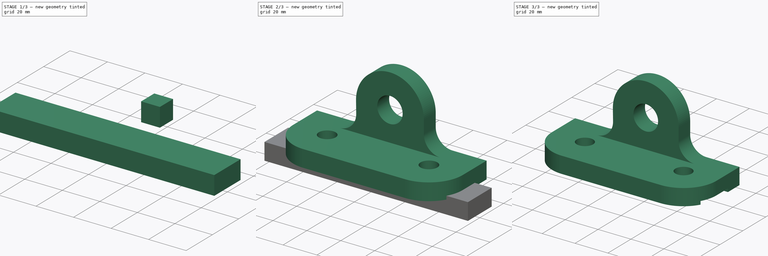
[diagram: build sequence overview — one tinted view per stage of 3, left to right]
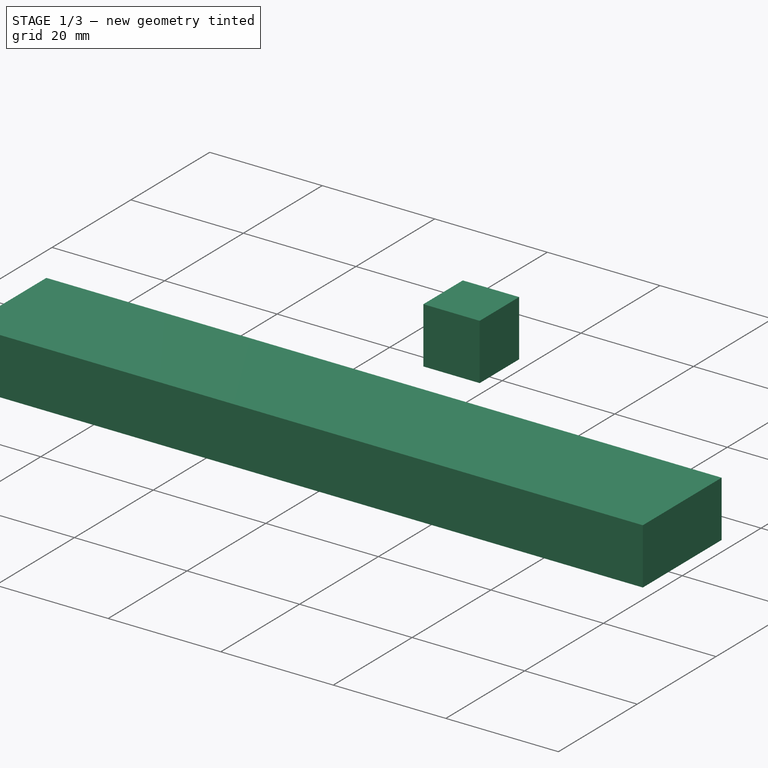
[diagram: stage 1 of 3 — iso view after this stage's code; geometry added in this stage tinted green]
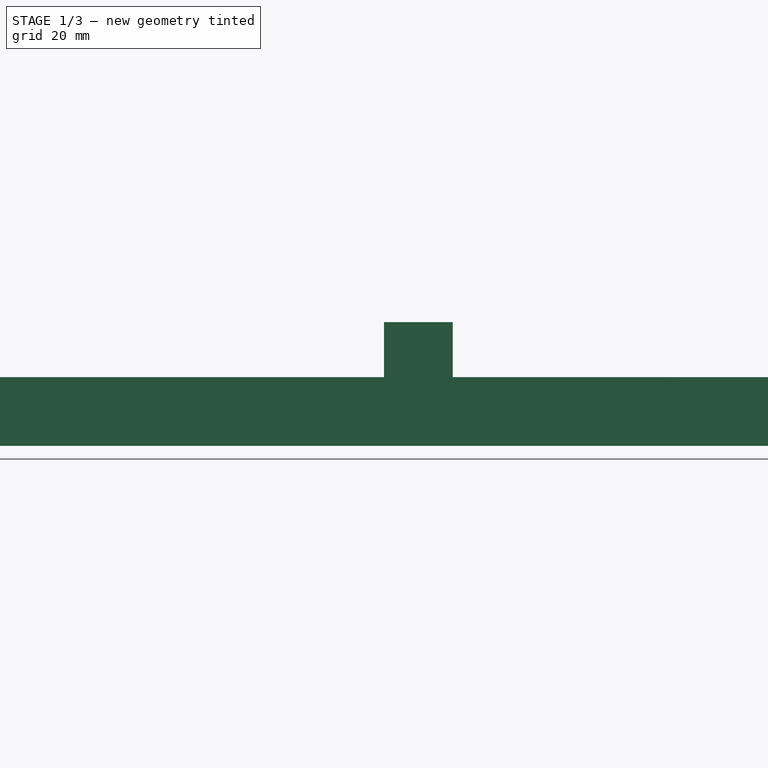
[diagram: stage 1 of 3 — front view after this stage's code; geometry added in this stage tinted green]
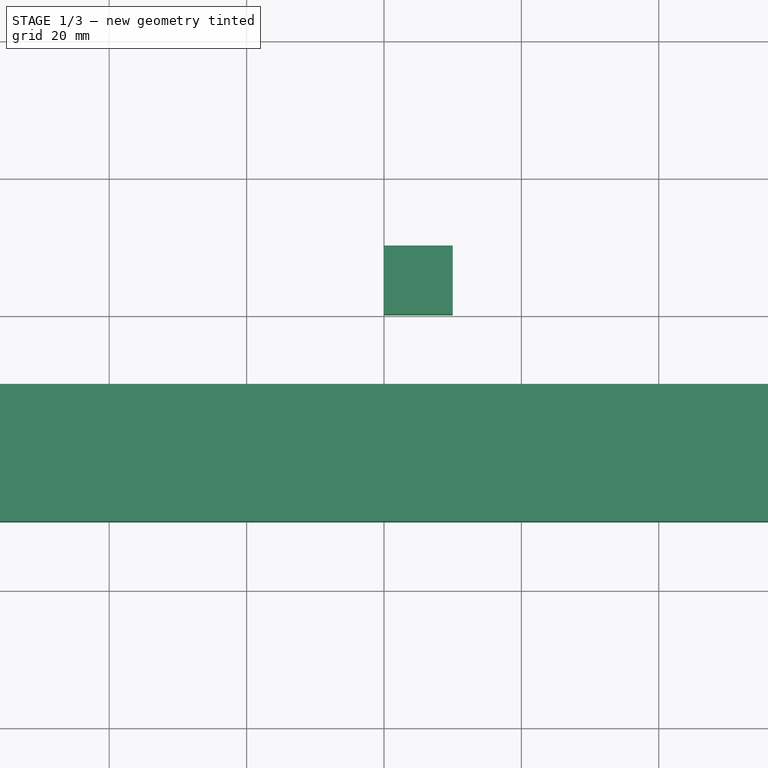
[diagram: stage 1 of 3 — top view after this stage's code; geometry added in this stage tinted green]
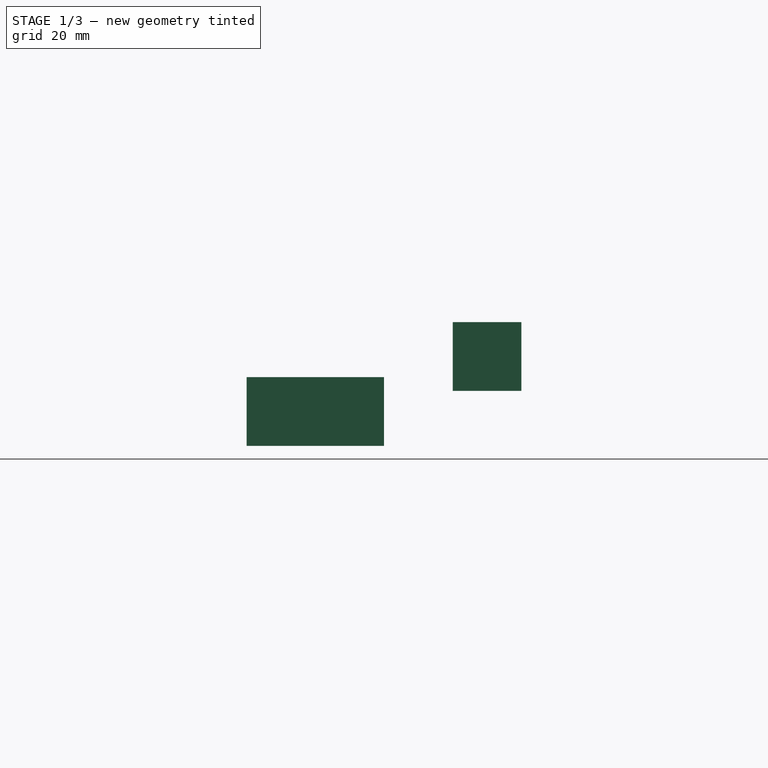
[diagram: stage 1 of 3 — right view after this stage's code; geometry added in this stage tinted green]
FCSTD DOCUMENT  (FreeCAD 0.16R6700 (Git))
Label: ejer9 final
License: All rights reserved
LicenseURL: http://en.wikipedia.org/wiki/All_rights_reserved
objects: Sketcher::SketchObject×3, PartDesign::Pad×3, Part::MultiFuse×1, Part::Cut×1, Part::Box×1
note: 12 computed .brp shape members not serialized (recipe doc carries the construction recipe); baked Part::Feature solids carry a one-line shape summary decoded from their .brp

FEATURE [Sketcher::SketchObject] Sketch002
  Placement = pos=(0,0,0) rot=(0.57735,0.57735,0.57735;2.0944rad)
  sketch-geometry (4):
    g0: LineSegment StartX=-30 StartY=-8 StartZ=0 EndX=-10 EndY=-8 EndZ=0
    g1: LineSegment StartX=-10 StartY=-8 StartZ=0 EndX=-10 EndY=2 EndZ=0
    g2: LineSegment StartX=-10 StartY=2 StartZ=0 EndX=-30 EndY=2 EndZ=0
    g3: LineSegment StartX=-30 StartY=2 StartZ=0 EndX=-30 EndY=-8 EndZ=0
  constraints (12):
    c: Coincident(g0,g1)
    c: Coincident(g1,g2)
    c: Coincident(g2,g3)
    c: Coincident(g3,g0)
    c: Horizontal(g0)
    c: Horizontal(g2)
    c: Vertical(g1)
    c: Vertical(g3)
    c: DistanceX(g0,g0) = 20
    c: DistanceY(g1,g1) = 10
    c: DistanceY(g-1,g1) = 2
    c: DistanceX(g1,g-1) = 10
FEATURE [PartDesign::Pad] Pad002
  Length = 120
  Length2 = 100
  Midplane = true
  Placement = pos=(0,0,0) rot=(0.57735,0.57735,0.57735;2.0944rad)
  Sketch = -> Sketch002
  Type = 0
FEATURE [Part::Box] Box  label="Cubo"
  Height = 10
  Length = 10
  Width = 10
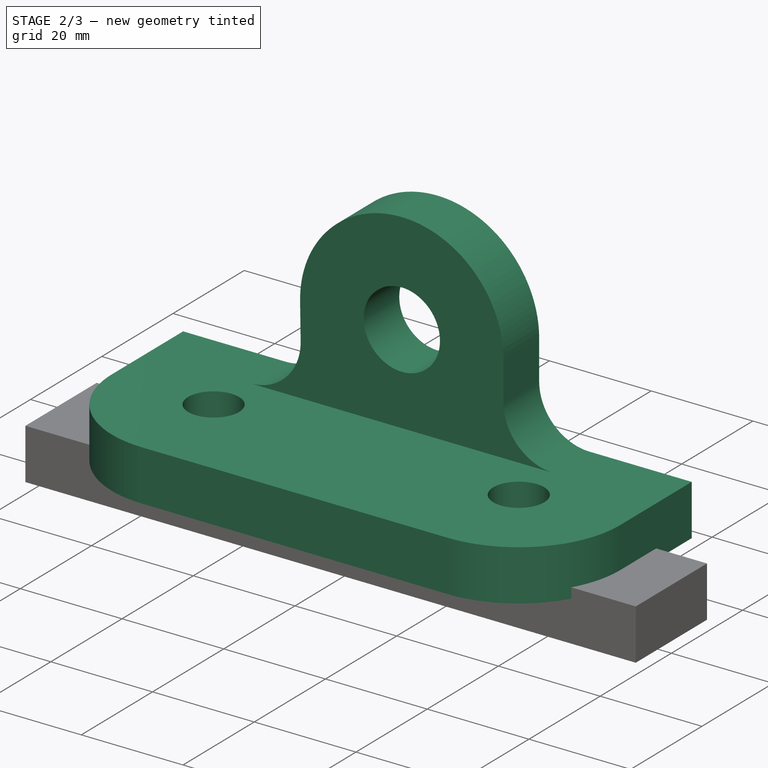
[diagram: stage 2 of 3 — iso view after this stage's code; geometry added in this stage tinted green]
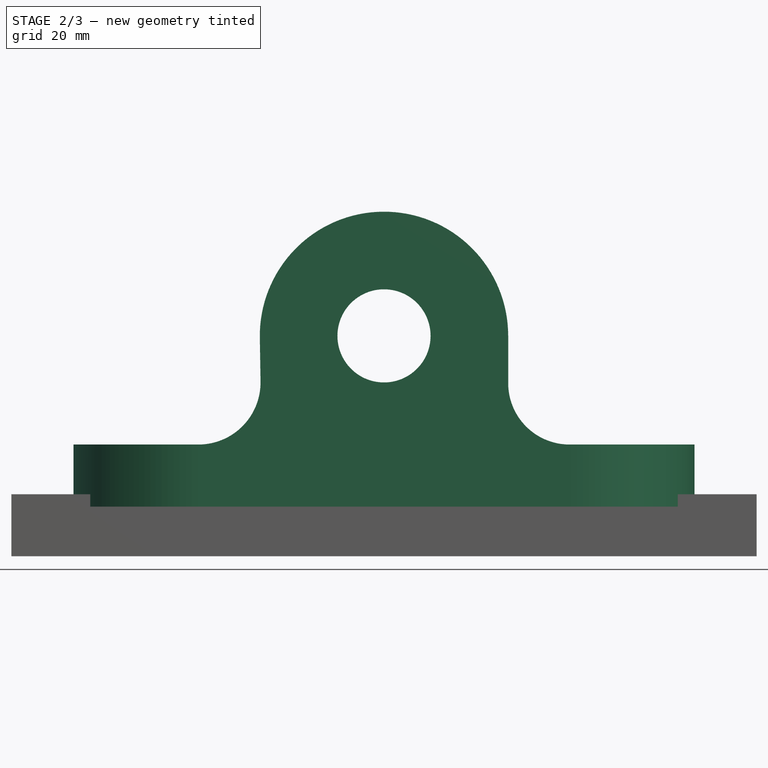
[diagram: stage 2 of 3 — front view after this stage's code; geometry added in this stage tinted green]
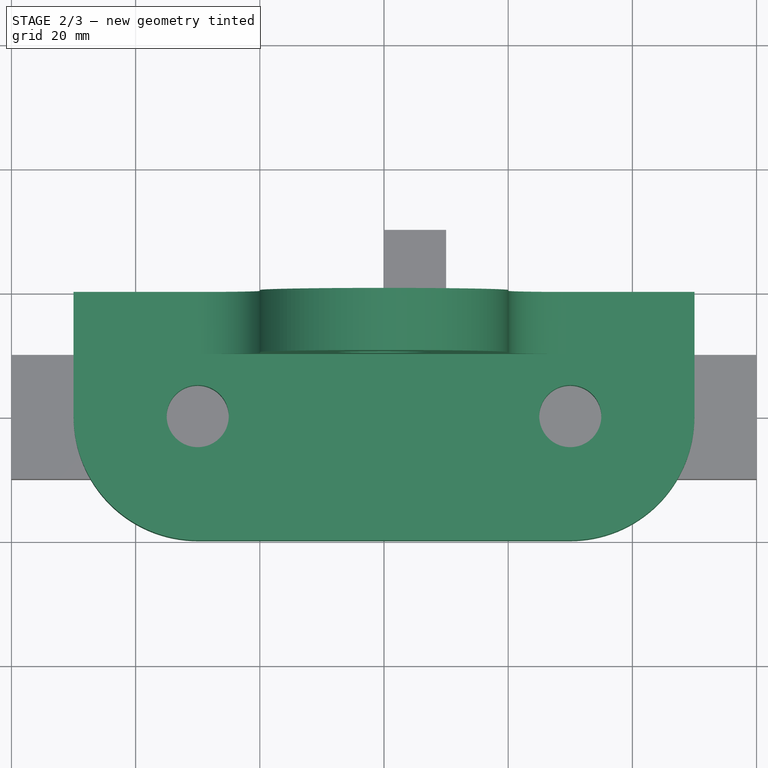
[diagram: stage 2 of 3 — top view after this stage's code; geometry added in this stage tinted green]
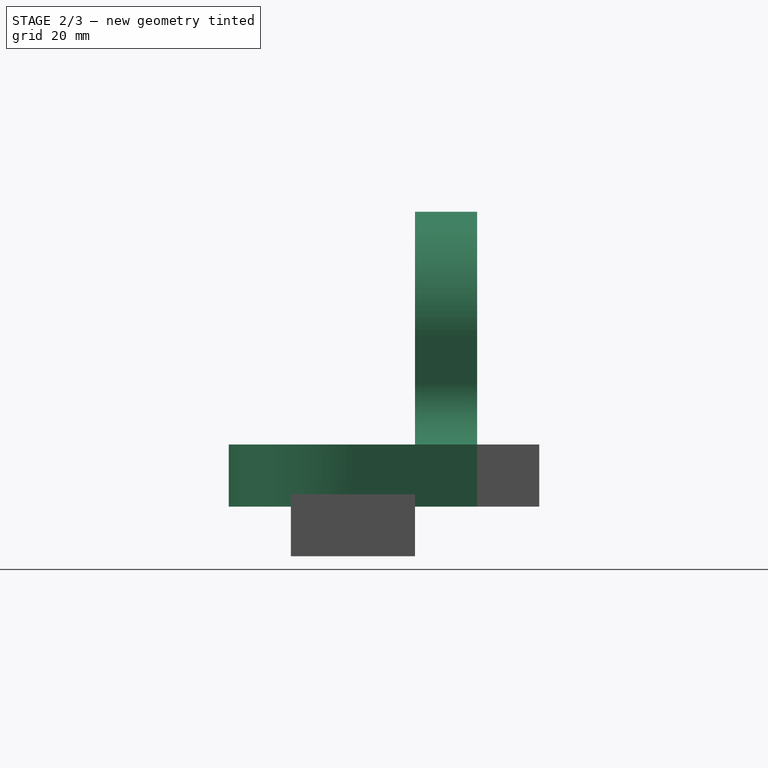
[diagram: stage 2 of 3 — right view after this stage's code; geometry added in this stage tinted green]
FEATURE [Sketcher::SketchObject] Sketch
  sketch-geometry (8):
    g0: LineSegment StartX=-50 StartY=0 StartZ=0 EndX=50 EndY=0 EndZ=0
    g1: LineSegment StartX=50 StartY=0 StartZ=0 EndX=50 EndY=-20 EndZ=0
    g2: LineSegment StartX=30 StartY=-40 StartZ=0 EndX=-30 EndY=-40 EndZ=0
    g3: LineSegment StartX=-50 StartY=-20 StartZ=0 EndX=-50 EndY=0 EndZ=0
    g4: ArcOfCircle CenterX=30 CenterY=-20 CenterZ=0 NormalX=0 NormalY=0 NormalZ=1 Radius=20 StartAngle=4.71239 EndAngle=6.28319
    g5: ArcOfCircle CenterX=-30 CenterY=-20 CenterZ=0 NormalX=0 NormalY=0 NormalZ=1 Radius=20 StartAngle=3.14159 EndAngle=4.71239
    g6: Circle CenterX=-30 CenterY=-20 CenterZ=0 NormalX=0 NormalY=0 NormalZ=1 Radius=5
    g7: Circle CenterX=30 CenterY=-20 CenterZ=0 NormalX=0 NormalY=0 NormalZ=1 Radius=5
  constraints (21):
    c: Coincident(g0,g1)
    c: Coincident(g3,g0)
    c: Horizontal(g2)
    c: Vertical(g1)
    c: Vertical(g3)
    c: PointOnObject(g0,g-1)
    c: Symmetric(g0,g0,g-2)
    c: DistanceX(g0,g0) = 100
    c: Tangent(g1,g4) = 1.5708
    c: Tangent(g2,g4) = 1.5708
    c: Tangent(g3,g5) = 1.5708
    c: Tangent(g2,g5) = 1.5708
    c: Radius(g7) = 5
    c: Equal(g7,g6)
    c: DistanceX(g6,g7) = 60
    c: DistanceY(g7,g0) = 20
    c: DistanceY(g6,g0) = 20
    c: Symmetric(g7,g6,g-2)
    c: DistanceY(g2,g0) = 40
    c: Radius(g5) = 20
    c: Radius(g4) = 20
FEATURE [PartDesign::Pad] Pad
  Length = 10
  Length2 = 100
  Sketch = -> Sketch
  Type = 0
FEATURE [Sketcher::SketchObject] Sketch001
  Placement = pos=(0,0,0) rot=(-1,0,0;4.71239rad)
  sketch-geometry (7):
    g0: Circle CenterX=0 CenterY=27.5 CenterZ=0 NormalX=0 NormalY=0 NormalZ=1 Radius=7.5
    g1: ArcOfCircle CenterX=0 CenterY=27.5 CenterZ=0 NormalX=0 NormalY=0 NormalZ=1 Radius=20 StartAngle=2.41e-09 EndAngle=3.15763
    g2: LineSegment StartX=-19.9974 StartY=27.1792 StartZ=0 EndX=-19.8848 EndY=20.1604 EndZ=0
    g3: LineSegment StartX=20 StartY=27.5 StartZ=0 EndX=20 EndY=19.8836 EndZ=0
    g4: ArcOfCircle CenterX=-29.8836 CenterY=20 CenterZ=0 NormalX=0 NormalY=0 NormalZ=1 Radius=10 StartAngle=4.71239 EndAngle=6.29922
    g5: ArcOfCircle CenterX=29.8836 CenterY=19.8836 CenterZ=0 NormalX=0 NormalY=0 NormalZ=1 Radius=9.88356 StartAngle=3.14159 EndAngle=4.71239
    g6: LineSegment StartX=-29.8836 StartY=10 StartZ=0 EndX=29.8836 EndY=10 EndZ=0
  constraints (20):
    c: PointOnObject(g0,g-2)
    c: Radius(g0) = 7.5
    c: DistanceY(g0) = 27.5
    c: Coincident(g1,g0)
    c: Radius(g1) = 20
    c: Coincident(g2,g1)
    c: Coincident(g3,g1)
    c: Vertical(g3)
    c: Tangent(g2,g4) = 1.5708
    c: Tangent(g3,g5) = -1.5708
    c: Radius(g4) = 10
    c: Tangent(g2,g1)
    c: Tangent(g3,g1)
    c: Coincident(g6,g4)
    c: Coincident(g6,g5)
    c: Horizontal(g6)
    c: DistanceY(g-1,g5) = 10
    c: Tangent(g6,g4)
    c: Tangent(g6,g5)
    c: Symmetric(g4,g5,g-2)
FEATURE [PartDesign::Pad] Pad001
  Length = 10
  Length2 = 100
  Placement = pos=(0,0,0) rot=(-1,0,0;4.71239rad)
  Sketch = -> Sketch001
  Type = 0
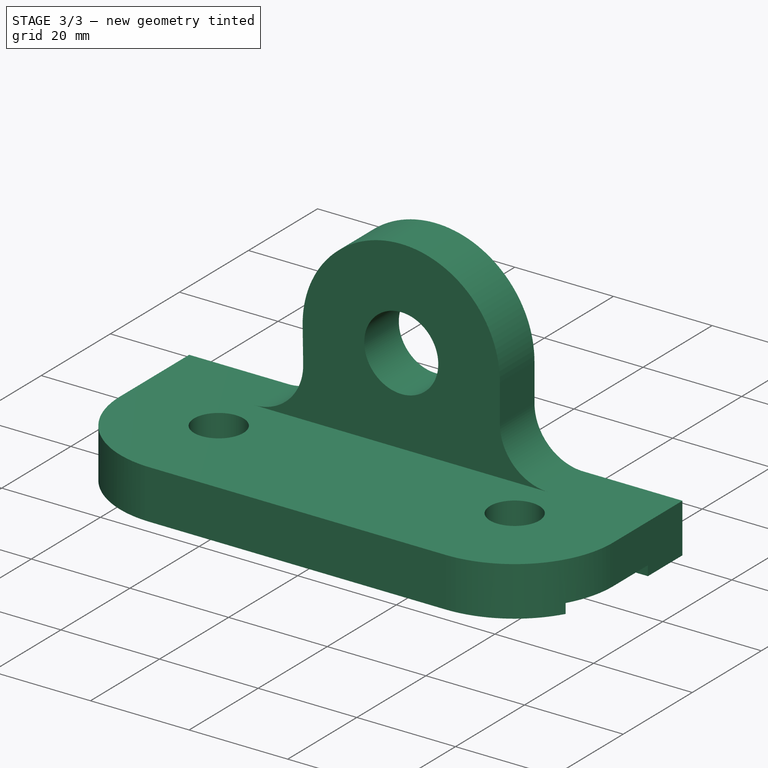
[diagram: stage 3 of 3 — iso view after this stage's code; geometry added in this stage tinted green]
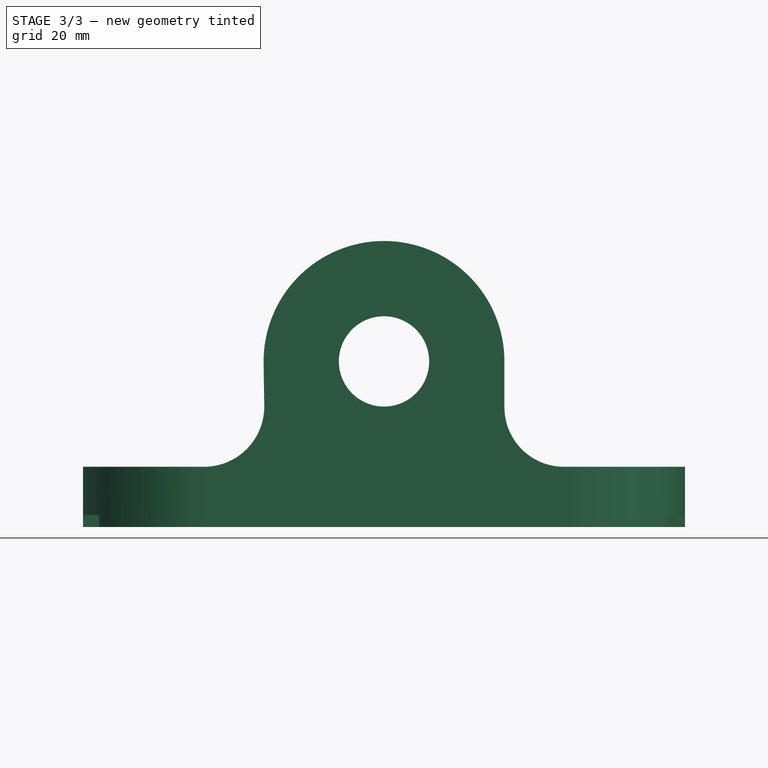
[diagram: stage 3 of 3 — front view after this stage's code; geometry added in this stage tinted green]
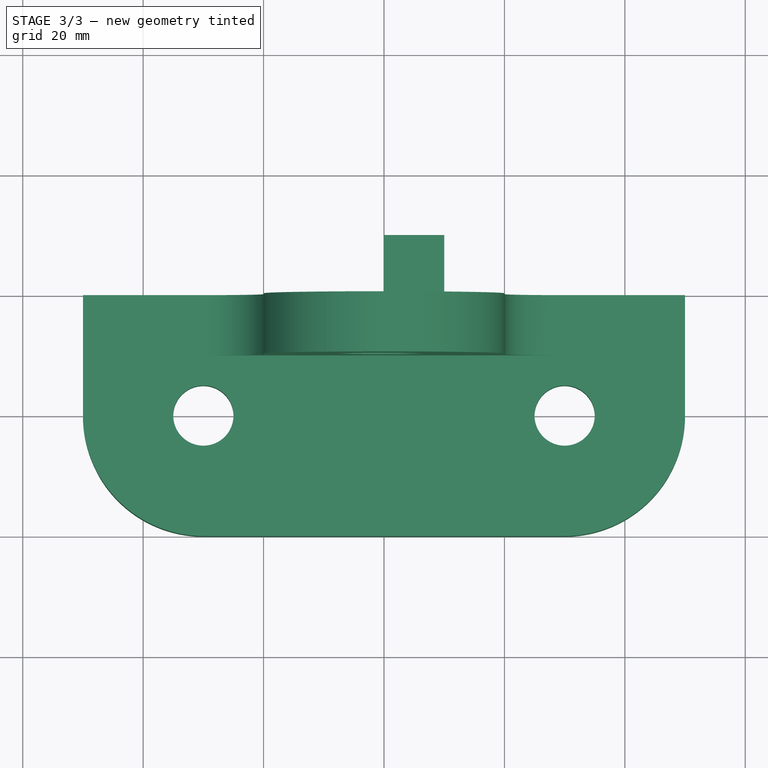
[diagram: stage 3 of 3 — top view after this stage's code; geometry added in this stage tinted green]
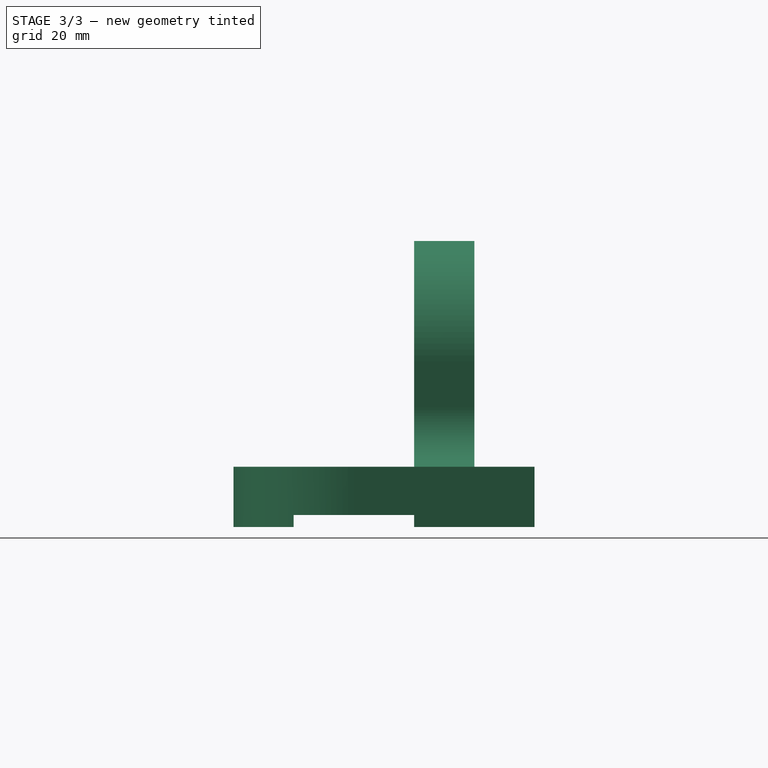
[diagram: stage 3 of 3 — right view after this stage's code; geometry added in this stage tinted green]
FEATURE [Part::MultiFuse] Fusion
  Shapes = -> [Pad001,Pad]
FEATURE [Part::Cut] Cut
  Base = -> Fusion
  Tool = -> Pad002
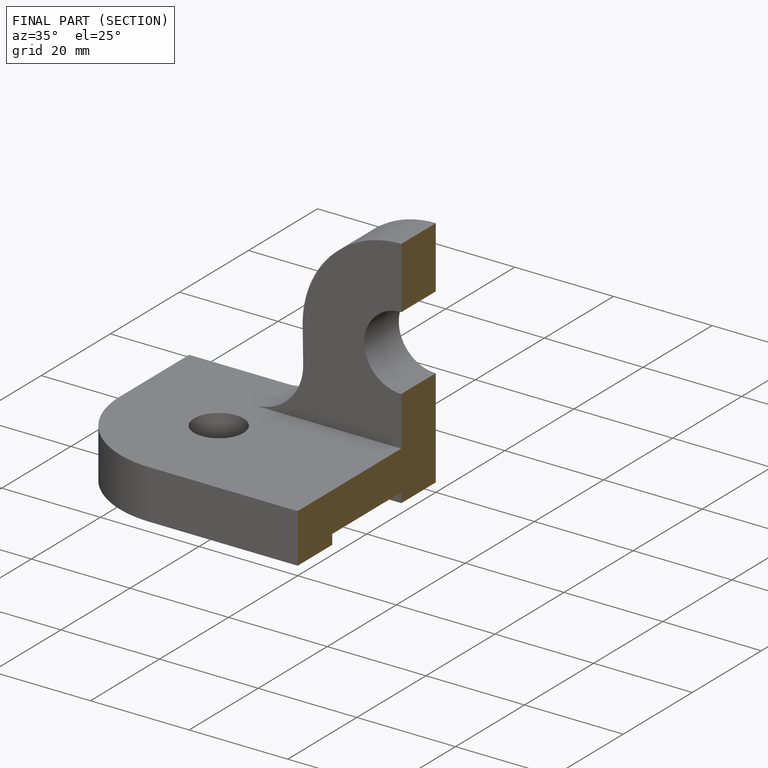
[diagram: finished part — half-section view (interior)]
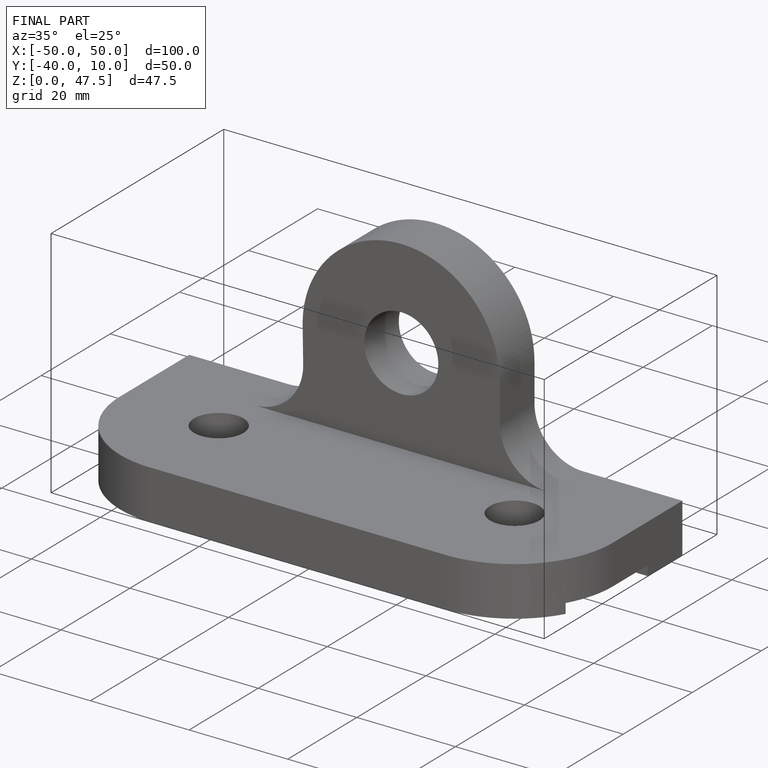
[diagram: finished part — iso view with bounding-box wireframe]
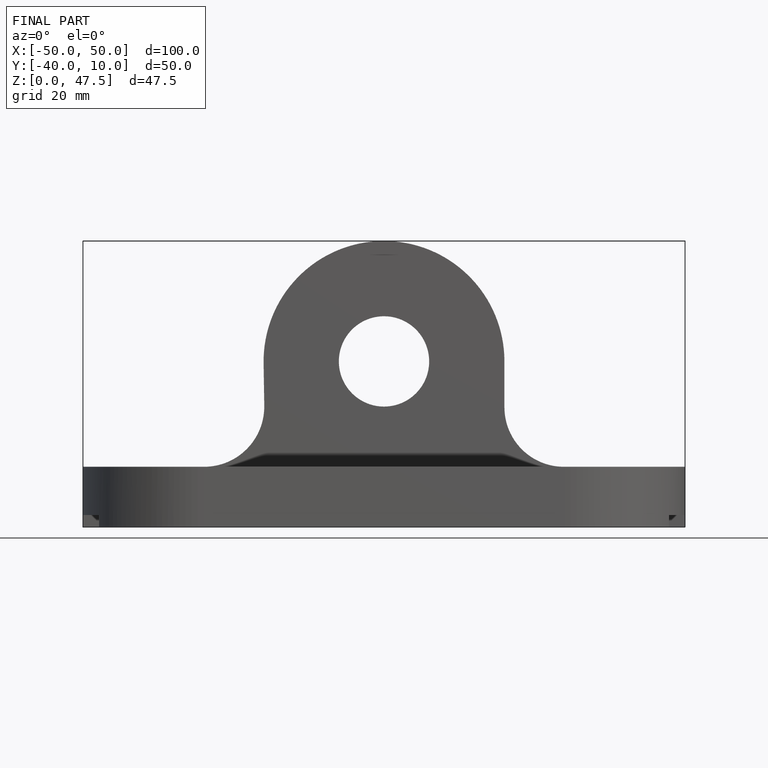
[diagram: finished part — front view with bounding-box wireframe]
